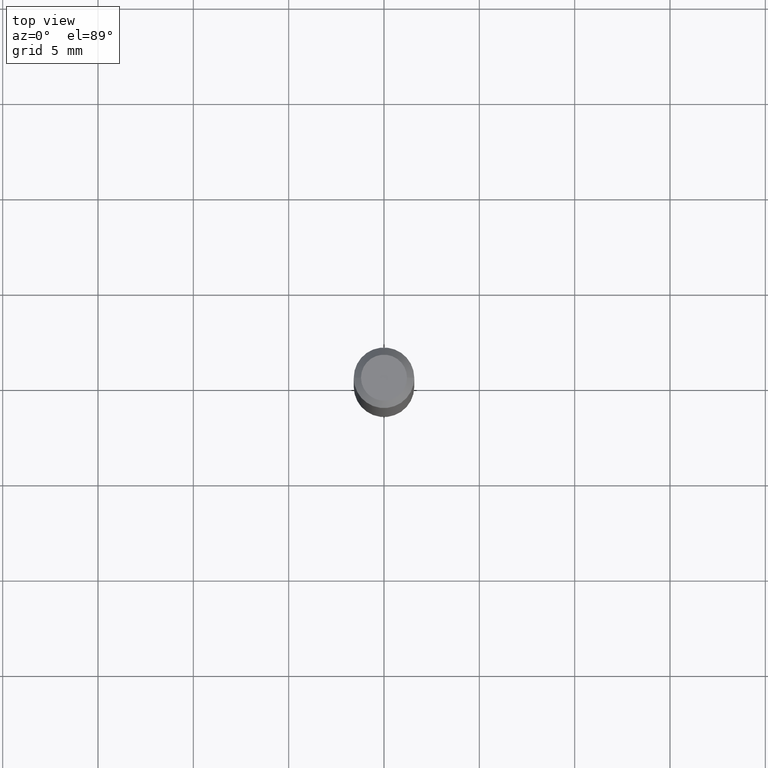
[diagram: clean part render]
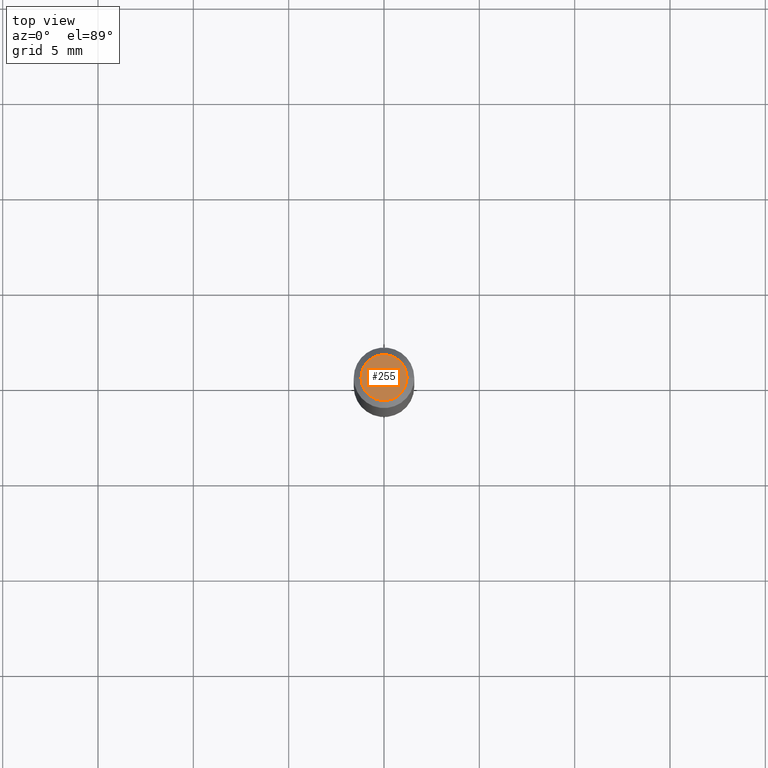
[diagram: same view with one face highlighted and labeled with its STEP entity id]
A machine part, top view. The second image highlights one B-rep face of the part: STEP entity #255.
In plain terms, the highlighted planar face has unit normal (0, -0, -1).
Its self-contained STEP definition (entity closure, byte-faithful):
#9 = EDGE_CURVE ( 'NONE', #19, #154, #163, .T. ) ;
#11 = EDGE_LOOP ( 'NONE', ( #385, #139 ) ) ;
#19 = VERTEX_POINT ( 'NONE', #125 ) ;
#21 = DIRECTION ( 'NONE',  ( 2.438088387897960049E-29, -3.491481338843145188E-15, -1.000000000000000000 ) ) ;
#37 = CIRCLE ( 'NONE', #193, 0.04749999999999999362 ) ;
#109 = AXIS2_PLACEMENT_3D ( 'NONE', #191, #21, #187 ) ;
#125 = CARTESIAN_POINT ( 'NONE',  ( 0.04749999999999999362, -4.035134999187579609E-16, -2.891391092786643317E-17 ) ) ;
#139 = ORIENTED_EDGE ( 'NONE', *, *, #9, .T. ) ;
#154 = VERTEX_POINT ( 'NONE', #375 ) ;
#163 = CIRCLE ( 'NONE', #395, 0.04749999999999999362 ) ;
#169 = DIRECTION ( 'NONE',  ( 1.000000000000000000, -6.982962677686267499E-15, 4.876681293081646444E-29 ) ) ;
#187 = DIRECTION ( 'NONE',  ( -1.000000000000000000, 6.982962677686265922E-15, -4.876176775795935793E-29 ) ) ;
#191 = CARTESIAN_POINT ( 'NONE',  ( 3.316907271900976096E-16, 0.04749999999999999362, -1.803023190589839165E-16 ) ) ;
#193 = AXIS2_PLACEMENT_3D ( 'NONE', #363, #476, #517 ) ;
#255 = ADVANCED_FACE ( 'NONE', ( #432 ), #507, .F. ) ;
#363 = CARTESIAN_POINT ( 'NONE',  ( 7.070806723891919892E-46, -1.009523804376275185E-31, -2.891391092786900313E-17 ) ) ;
#372 = DIRECTION ( 'NONE',  ( -2.445468806185136597E-29, 3.491481338843145583E-15, 1.000000000000000000 ) ) ;
#375 = CARTESIAN_POINT ( 'NONE',  ( -0.04749999999999999362, 3.578768372314209027E-16, -2.891391092787141902E-17 ) ) ;
#379 = CARTESIAN_POINT ( 'NONE',  ( 7.070806723891919892E-46, -1.009523804376275185E-31, -2.891391092786900313E-17 ) ) ;
#385 = ORIENTED_EDGE ( 'NONE', *, *, #514, .T. ) ;
#395 = AXIS2_PLACEMENT_3D ( 'NONE', #379, #372, #169 ) ;
#432 = FACE_OUTER_BOUND ( 'NONE', #11, .T. ) ;
#476 = DIRECTION ( 'NONE',  ( -2.445468806185136597E-29, 3.491481338843145583E-15, 1.000000000000000000 ) ) ;
#507 = PLANE ( 'NONE',  #109 ) ;
#514 = EDGE_CURVE ( 'NONE', #154, #19, #37, .T. ) ;
#517 = DIRECTION ( 'NONE',  ( 1.000000000000000000, -6.982962677686267499E-15, 4.876681293081646444E-29 ) ) ;